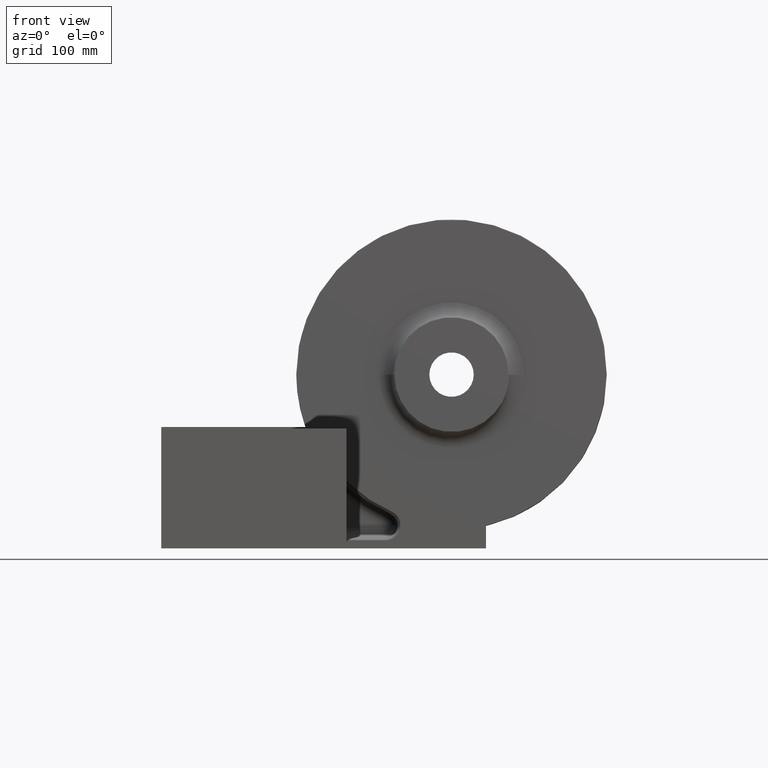
[diagram: clean part render]
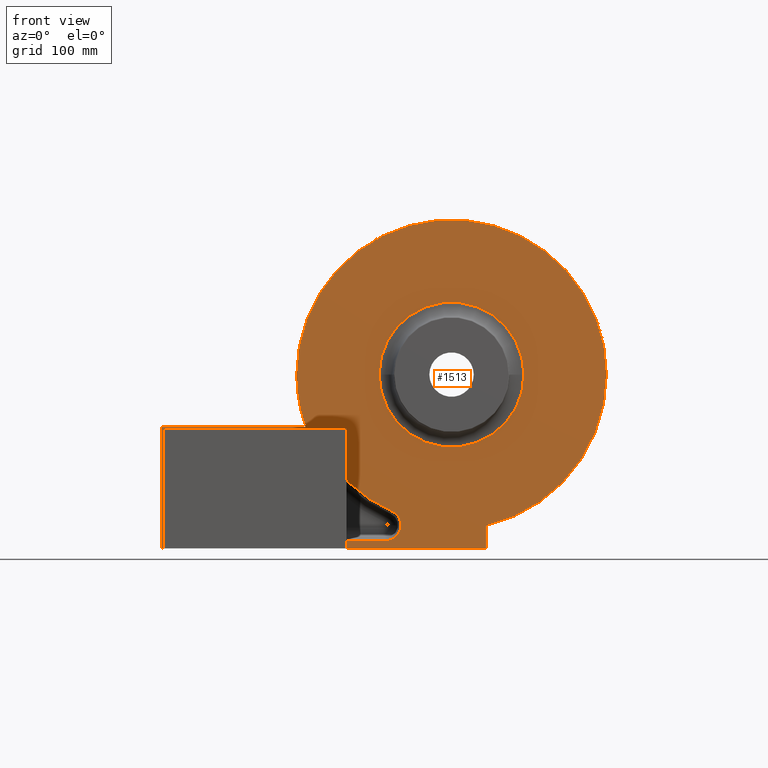
[diagram: same view with one face highlighted and labeled with its STEP entity id]
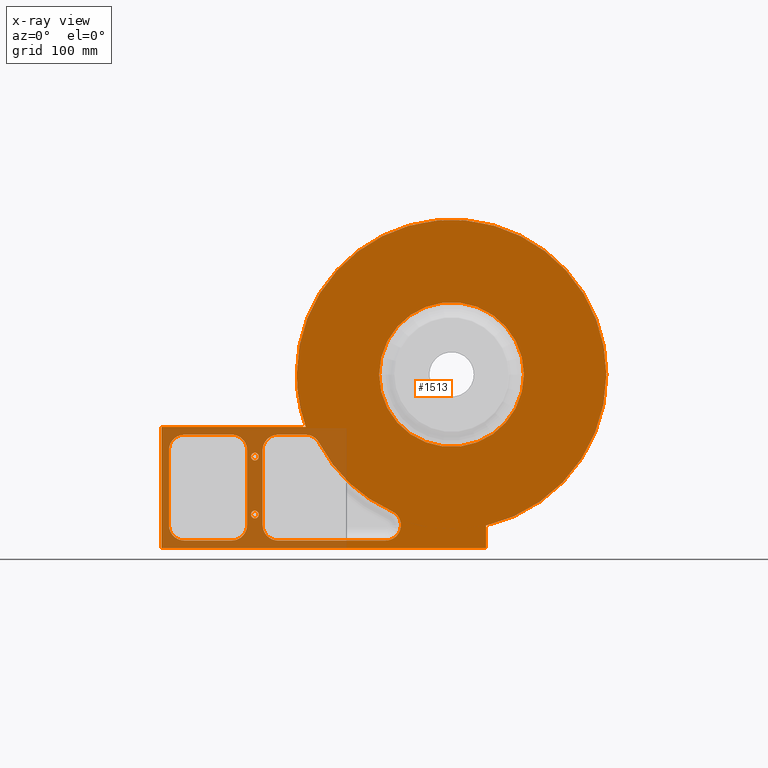
[diagram: x-ray of the same camera — body ghosted, the highlighted face saturated]
A machine part, front view. The second image highlights one B-rep face of the part: STEP entity #1513.
The next image is the same camera in x-ray: the body ghosted, the highlighted face saturated — about 9% of this face is hidden behind the body in this view.
In plain terms, the highlighted planar face has unit normal (-0, -1, 0).
Its self-contained STEP definition (entity closure, byte-faithful):
#8 = ORIENTED_EDGE ( 'NONE', *, *, #1732, .F. ) ;
#17 = EDGE_CURVE ( 'NONE', #4305, #844, #1798, .T. ) ;
#24 = CARTESIAN_POINT ( 'NONE',  ( 107.7357072589169320, 399.9999000000000251, -10.99392349670232427 ) ) ;
#56 = CARTESIAN_POINT ( 'NONE',  ( 95.00000000000005684, 399.9999000000000251, -28.99999999999997158 ) ) ;
#113 = VERTEX_POINT ( 'NONE', #1658 ) ;
#170 = CARTESIAN_POINT ( 'NONE',  ( 103.0516862581566642, 399.9999000000000251, -99.95379654223441435 ) ) ;
#181 = ORIENTED_EDGE ( 'NONE', *, *, #1547, .F. ) ;
#195 = EDGE_CURVE ( 'NONE', #3218, #1391, #3594, .T. ) ;
#197 = CARTESIAN_POINT ( 'NONE',  ( 22.00000000000007461, 399.9999000000000251, -6.309902495942099065 ) ) ;
#203 = EDGE_CURVE ( 'NONE', #3938, #1290, #1618, .T. ) ;
#213 = CARTESIAN_POINT ( 'NONE',  ( 79.22500547356895595, 399.9999000000000819, -114.3035800085973790 ) ) ;
#248 = ORIENTED_EDGE ( 'NONE', *, *, #2080, .F. ) ;
#263 = CARTESIAN_POINT ( 'NONE',  ( 80.32449696644725634, 399.9999000000001388, -6.309902495942099065 ) ) ;
#271 = LINE ( 'NONE', #1792, #2079 ) ;
#286 = EDGE_CURVE ( 'NONE', #715, #2244, #1958, .T. ) ;
#307 = AXIS2_PLACEMENT_3D ( 'NONE', #371, #4455, #3662 ) ;
#333 = CARTESIAN_POINT ( 'NONE',  ( 161.6348841464114230, 399.9999000000000251, -14.93015284774251761 ) ) ;
#368 = PLANE ( 'NONE',  #3910 ) ;
#371 = CARTESIAN_POINT ( 'NONE',  ( 298.7417837622145385, 399.9998999999999683, 55.99999999999999289 ) ) ;
#387 = EDGE_CURVE ( 'NONE', #1756, #4097, #2100, .T. ) ;
#406 = ORIENTED_EDGE ( 'NONE', *, *, #1072, .T. ) ;
#412 = CIRCLE ( 'NONE', #4493, 160.3160192545639120 ) ;
#422 = DIRECTION ( 'NONE',  ( -1.214623636765614367E-16, -1.000000000000000000, 0.0000000000000000000 ) ) ;
#446 = LINE ( 'NONE', #1851, #4320 ) ;
#457 = VECTOR ( 'NONE', #1303, 1000.000000000000000 ) ;
#470 = CIRCLE ( 'NONE', #784, 3.999999999999989786 ) ;
#482 = CARTESIAN_POINT ( 'NONE',  ( 103.0516862581567210, 399.9999000000000251, 56.00000000000004974 ) ) ;
#514 = CARTESIAN_POINT ( 'NONE',  ( 373.7417837622145385, 399.9998999999999683, 55.99999999999999289 ) ) ;
#542 = AXIS2_PLACEMENT_3D ( 'NONE', #3396, #2222, #1908 ) ;
#555 = CARTESIAN_POINT ( 'NONE',  ( 22.00000000000007461, 399.9999000000000251, -99.99999999999997158 ) ) ;
#569 = EDGE_CURVE ( 'NONE', #2107, #3257, #2661, .T. ) ;
#583 = FACE_BOUND ( 'NONE', #1921, .T. ) ;
#585 = CARTESIAN_POINT ( 'NONE',  ( 95.00000000000002842, 399.9999000000000251, -89.00000000000000000 ) ) ;
#598 = CARTESIAN_POINT ( 'NONE',  ( 114.7465298024211080, 399.9999000000000251, -6.309902495942115941 ) ) ;
#601 = DIRECTION ( 'NONE',  ( -1.214623636765614367E-16, -1.000000000000000000, -0.0000000000000000000 ) ) ;
#641 = CARTESIAN_POINT ( 'NONE',  ( 70.95379654223451382, 399.9999000000000251, -115.9483137418433358 ) ) ;
#659 = EDGE_LOOP ( 'NONE', ( #1892, #729, #3382, #2300, #248, #4632, #2931, #8, #4862 ) ) ;
#668 = DIRECTION ( 'NONE',  ( -1.000000000000000000, 1.242786967863980845E-16, 0.0000000000000000000 ) ) ;
#672 = VERTEX_POINT ( 'NONE', #1900 ) ;
#691 = CARTESIAN_POINT ( 'NONE',  ( 86.94831374184336426, 399.9999000000000251, -104.2534701975789631 ) ) ;
#704 = CIRCLE ( 'NONE', #3206, 15.94831374184333583 ) ;
#715 = VERTEX_POINT ( 'NONE', #2308 ) ;
#718 = CARTESIAN_POINT ( 'NONE',  ( 99.00000000000001421, 399.9999000000000251, -89.00000000000000000 ) ) ;
#727 = ORIENTED_EDGE ( 'NONE', *, *, #2587, .F. ) ;
#729 = ORIENTED_EDGE ( 'NONE', *, *, #203, .F. ) ;
#762 = CARTESIAN_POINT ( 'NONE',  ( 110.7749945264311862, 399.9999000000000251, -7.954636229188082552 ) ) ;
#784 = AXIS2_PLACEMENT_3D ( 'NONE', #56, #2610, #2245 ) ;
#785 = CARTESIAN_POINT ( 'NONE',  ( 86.94831374184342110, 399.9999000000000251, 55.99999999999999289 ) ) ;
#819 = CARTESIAN_POINT ( 'NONE',  ( 6.051686258156719234, 399.9999000000000251, -22.25821623778540115 ) ) ;
#820 = CARTESIAN_POINT ( 'NONE',  ( 86.94831374184339268, 399.9999000000000251, -22.30441969555102588 ) ) ;
#826 = EDGE_CURVE ( 'NONE', #3317, #1615, #4608, .T. ) ;
#830 = CARTESIAN_POINT ( 'NONE',  ( 230.3930718890489402, 399.9999000000000251, -115.9483137418433643 ) ) ;
#844 = VERTEX_POINT ( 'NONE', #3184 ) ;
#862 = CIRCLE ( 'NONE', #1730, 15.94831374184338380 ) ;
#878 = ORIENTED_EDGE ( 'NONE', *, *, #195, .T. ) ;
#888 = CARTESIAN_POINT ( 'NONE',  ( 22.00000000000007461, 399.9999000000000251, -6.309902495942099065 ) ) ;
#901 = EDGE_CURVE ( 'NONE', #1147, #2249, #3108, .T. ) ;
#941 = VERTEX_POINT ( 'NONE', #2988 ) ;
#953 = CARTESIAN_POINT ( 'NONE',  ( 71.00479745034216705, 399.9999000000000251, -115.9483137418433358 ) ) ;
#963 = DIRECTION ( 'NONE',  ( 1.000000000000000000, 0.0000000000000000000, 0.0000000000000000000 ) ) ;
#965 = CARTESIAN_POINT ( 'NONE',  ( 6.051686258156774301, 399.9999000000000251, -99.99999999999997158 ) ) ;
#972 = FACE_OUTER_BOUND ( 'NONE', #1627, .T. ) ;
#979 = DIRECTION ( 'NONE',  ( 1.000000000000000000, -1.214623636765614367E-16, -1.328815102230828392E-16 ) ) ;
#989 = CARTESIAN_POINT ( 'NONE',  ( 298.7417837622145385, 399.9999000000000251, 55.99999999999999289 ) ) ;
#993 = CARTESIAN_POINT ( 'NONE',  ( -1.999999999999946265, 399.9999000000000251, -124.0000000000000000 ) ) ;
#1029 = CIRCLE ( 'NONE', #1189, 15.94831374184338380 ) ;
#1064 = CARTESIAN_POINT ( 'NONE',  ( 298.7417837622145385, 399.9999000000000251, 55.99999999999999289 ) ) ;
#1072 = EDGE_CURVE ( 'NONE', #1391, #3218, #4144, .T. ) ;
#1093 = CARTESIAN_POINT ( 'NONE',  ( 147.4698497955959624, 399.9999000000000251, -22.25821623778551128 ) ) ;
#1147 = VERTEX_POINT ( 'NONE', #4612 ) ;
#1161 = CARTESIAN_POINT ( 'NONE',  ( 230.3930718890489402, 399.9999000000000251, -99.99999999999997158 ) ) ;
#1162 = CARTESIAN_POINT ( 'NONE',  ( 104.6964199914026921, 399.9999000000000251, -14.03321076421655889 ) ) ;
#1170 = ORIENTED_EDGE ( 'NONE', *, *, #3642, .F. ) ;
#1189 = AXIS2_PLACEMENT_3D ( 'NONE', #1161, #3014, #3353 ) ;
#1190 = VERTEX_POINT ( 'NONE', #2790 ) ;
#1192 = CARTESIAN_POINT ( 'NONE',  ( 119.0462034577655857, 399.9999000000000251, -115.9483137418433358 ) ) ;
#1198 = VECTOR ( 'NONE', #3101, 1000.000000000000000 ) ;
#1208 = CARTESIAN_POINT ( 'NONE',  ( 6.051686258156719234, 399.9999000000000251, -99.99999999999997158 ) ) ;
#1209 = CARTESIAN_POINT ( 'NONE',  ( 95.00000000000002842, 399.9999000000000251, -89.00000000000000000 ) ) ;
#1217 = CARTESIAN_POINT ( 'NONE',  ( 230.3930718890489402, 399.9999000000000251, -115.9483137418433643 ) ) ;
#1222 = EDGE_CURVE ( 'NONE', #4097, #3471, #3180, .T. ) ;
#1242 = LINE ( 'NONE', #482, #1323 ) ;
#1281 = EDGE_CURVE ( 'NONE', #3574, #3317, #1242, .T. ) ;
#1290 = VERTEX_POINT ( 'NONE', #4193 ) ;
#1303 = DIRECTION ( 'NONE',  ( 1.000000000000000000, -1.214623636765614367E-16, -1.139491522003710415E-19 ) ) ;
#1323 = VECTOR ( 'NONE', #2367, 1000.000000000000000 ) ;
#1326 = AXIS2_PLACEMENT_3D ( 'NONE', #585, #4416, #2859 ) ;
#1342 = CIRCLE ( 'NONE', #3135, 75.00000000000001421 ) ;
#1381 = CARTESIAN_POINT ( 'NONE',  ( 82.26429274108316747, 399.9999000000000251, -111.2642927410831390 ) ) ;
#1391 = VERTEX_POINT ( 'NONE', #3796 ) ;
#1402 = AXIS2_PLACEMENT_3D ( 'NONE', #3695, #3336, #2927 ) ;
#1416 = VECTOR ( 'NONE', #668, 1000.000000000000000 ) ;
#1417 = ORIENTED_EDGE ( 'NONE', *, *, #2693, .F. ) ;
#1428 = CARTESIAN_POINT ( 'NONE',  ( 333.7417837622145385, 399.9998999999999683, -124.0000000000000000 ) ) ;
#1436 = CARTESIAN_POINT ( 'NONE',  ( 459.0578030167784505, 399.9999000000000251, 55.99999999999999289 ) ) ;
#1513 = ADVANCED_FACE ( 'NONE', ( #2805, #3946, #583, #4340, #972, #2462 ), #368, .T. ) ;
#1546 = CARTESIAN_POINT ( 'NONE',  ( 103.0516862581566642, 399.9999000000001388, -109.3244969664471995 ) ) ;
#1547 = EDGE_CURVE ( 'NONE', #113, #3574, #3921, .T. ) ;
#1561 =( BOUNDED_CURVE ( )  B_SPLINE_CURVE ( 3, ( #4426, #598, #762, #2646 ),
 .UNSPECIFIED., .F., .F. ) 
 B_SPLINE_CURVE_WITH_KNOTS ( ( 4, 4 ),
 ( 5.498129760120305853, 6.283185307179586232 ),
 .UNSPECIFIED. ) 
 CURVE ( )  GEOMETRIC_REPRESENTATION_ITEM ( )  RATIONAL_B_SPLINE_CURVE ( ( 1.000000000000000000, 0.9492967171685287031, 0.9492967171685287031, 1.000000000000000000 ) ) 
 REPRESENTATION_ITEM ( '' )  );
#1615 = VERTEX_POINT ( 'NONE', #2305 ) ;
#1618 =( BOUNDED_CURVE ( )  B_SPLINE_CURVE ( 3, ( #3623, #2150, #263, #3227 ),
 .UNSPECIFIED., .F., .F. ) 
 B_SPLINE_CURVE_WITH_KNOTS ( ( 4, 4 ),
 ( 2.356537106530514514, 3.926648200649075271 ),
 .UNSPECIFIED. ) 
 CURVE ( )  GEOMETRIC_REPRESENTATION_ITEM ( )  RATIONAL_B_SPLINE_CURVE ( ( 1.000000000000000000, 0.8048993373437796084, 0.8048993373437796084, 1.000000000000000000 ) ) 
 REPRESENTATION_ITEM ( '' )  );
#1627 = EDGE_LOOP ( 'NONE', ( #4155, #3582, #4164, #4598, #2635, #1665, #4183, #3770 ) ) ;
#1642 = AXIS2_PLACEMENT_3D ( 'NONE', #2555, #2195, #2584 ) ;
#1658 = CARTESIAN_POINT ( 'NONE',  ( 107.7357072589169320, 399.9999000000000251, -10.99392349670232427 ) ) ;
#1665 = ORIENTED_EDGE ( 'NONE', *, *, #4149, .T. ) ;
#1680 = CIRCLE ( 'NONE', #4431, 160.3160192545639120 ) ;
#1686 = CARTESIAN_POINT ( 'NONE',  ( 70.95379654223451382, 399.9999000000000251, -115.9483137418433358 ) ) ;
#1709 = CARTESIAN_POINT ( 'NONE',  ( 82.26429274108316747, 399.9999000000000251, -111.2642927410831390 ) ) ;
#1730 = AXIS2_PLACEMENT_3D ( 'NONE', #1093, #4760, #2576 ) ;
#1732 = EDGE_CURVE ( 'NONE', #2689, #4854, #4378, .T. ) ;
#1755 = CARTESIAN_POINT ( 'NONE',  ( 85.30358000859743584, 399.9999000000000251, -108.2250054735688991 ) ) ;
#1756 = VERTEX_POINT ( 'NONE', #3237 ) ;
#1792 = CARTESIAN_POINT ( 'NONE',  ( 334.4835675244290201, 399.9998999999999683, 55.99999999999999289 ) ) ;
#1798 = CIRCLE ( 'NONE', #542, 3.999999999999989786 ) ;
#1839 = EDGE_CURVE ( 'NONE', #672, #113, #1561, .T. ) ;
#1851 = CARTESIAN_POINT ( 'NONE',  ( 118.9952025496579040, 399.9999000000000251, -6.309902495942099065 ) ) ;
#1882 = CIRCLE ( 'NONE', #1642, 15.94831374184336248 ) ;
#1883 = AXIS2_PLACEMENT_3D ( 'NONE', #989, #2772, #963 ) ;
#1892 = ORIENTED_EDGE ( 'NONE', *, *, #4139, .F. ) ;
#1900 = CARTESIAN_POINT ( 'NONE',  ( 119.0462034577656425, 399.9999000000000251, -6.309902495942099065 ) ) ;
#1908 = DIRECTION ( 'NONE',  ( -1.000000000000000000, 0.0000000000000000000, 0.0000000000000000000 ) ) ;
#1918 = DIRECTION ( 'NONE',  ( 1.000000000000000000, 0.0000000000000000000, 0.0000000000000000000 ) ) ;
#1921 = EDGE_LOOP ( 'NONE', ( #2975, #1170, #3755, #4285, #181, #3635, #1417, #727, #4688 ) ) ;
#1923 = CARTESIAN_POINT ( 'NONE',  ( 103.0516862581566642, 399.9999000000000251, -99.95379654223441435 ) ) ;
#1933 = EDGE_CURVE ( 'NONE', #2152, #3938, #4520, .T. ) ;
#1957 = VECTOR ( 'NONE', #2504, 1000.000000000000000 ) ;
#1958 = CIRCLE ( 'NONE', #1402, 154.3677055127205620 ) ;
#1969 = DIRECTION ( 'NONE',  ( 0.0000000000000000000, 0.0000000000000000000, 1.000000000000000000 ) ) ;
#2014 = CARTESIAN_POINT ( 'NONE',  ( 21.99999999999996447, 399.9999000000000251, -115.9483137418433358 ) ) ;
#2023 = EDGE_LOOP ( 'NONE', ( #3713, #2607 ) ) ;
#2079 = VECTOR ( 'NONE', #4795, 1000.000000000000000 ) ;
#2080 = EDGE_CURVE ( 'NONE', #4628, #1190, #4640, .T. ) ;
#2100 =( BOUNDED_CURVE ( )  B_SPLINE_CURVE ( 3, ( #4438, #3023, #4165, #4114 ),
 .UNSPECIFIED., .F., .F. ) 
 B_SPLINE_CURVE_WITH_KNOTS ( ( 4, 4 ),
 ( 5.497825219993115908, 7.068545394366056556 ),
 .UNSPECIFIED. ) 
 CURVE ( )  GEOMETRIC_REPRESENTATION_ITEM ( )  RATIONAL_B_SPLINE_CURVE ( ( 1.000000000000000000, 0.8047558030806296614, 0.8047558030806296614, 1.000000000000000000 ) ) 
 REPRESENTATION_ITEM ( '' )  );
#2107 = VERTEX_POINT ( 'NONE', #3969 ) ;
#2108 = VERTEX_POINT ( 'NONE', #3925 ) ;
#2127 = VECTOR ( 'NONE', #1969, 1000.000000000000000 ) ;
#2150 = CARTESIAN_POINT ( 'NONE',  ( 86.94831374184337847, 399.9999000000001388, -12.93371927133824251 ) ) ;
#2152 = VERTEX_POINT ( 'NONE', #2906 ) ;
#2163 = LINE ( 'NONE', #1428, #1416 ) ;
#2186 = DIRECTION ( 'NONE',  ( 1.000000000000000000, 0.0000000000000000000, 0.0000000000000000000 ) ) ;
#2195 = DIRECTION ( 'NONE',  ( -1.214623636765614367E-16, -1.000000000000000000, 0.0000000000000000000 ) ) ;
#2199 = EDGE_CURVE ( 'NONE', #3428, #2689, #1882, .T. ) ;
#2222 = DIRECTION ( 'NONE',  ( 1.214623636765614367E-16, 1.000000000000000000, -0.0000000000000000000 ) ) ;
#2244 = VERTEX_POINT ( 'NONE', #333 ) ;
#2245 = DIRECTION ( 'NONE',  ( -1.000000000000000000, 0.0000000000000000000, 0.0000000000000000000 ) ) ;
#2249 = VERTEX_POINT ( 'NONE', #1436 ) ;
#2256 = CARTESIAN_POINT ( 'NONE',  ( 298.7417837622145385, 399.9999000000000251, 55.99999999999999289 ) ) ;
#2287 = VECTOR ( 'NONE', #4701, 1000.000000000000000 ) ;
#2300 = ORIENTED_EDGE ( 'NONE', *, *, #4206, .F. ) ;
#2305 = CARTESIAN_POINT ( 'NONE',  ( 119.0462034577655857, 399.9999000000000251, -115.9483137418433358 ) ) ;
#2308 = CARTESIAN_POINT ( 'NONE',  ( 236.7932138461883937, 399.9999000000000251, -85.39223171950160918 ) ) ;
#2324 = ORIENTED_EDGE ( 'NONE', *, *, #2410, .T. ) ;
#2361 = DIRECTION ( 'NONE',  ( 1.000000000000000000, 0.0000000000000000000, 0.0000000000000000000 ) ) ;
#2367 = DIRECTION ( 'NONE',  ( -2.624844657249581056E-16, 3.188198363533278655E-32, -1.000000000000000000 ) ) ;
#2410 = EDGE_CURVE ( 'NONE', #844, #4305, #470, .T. ) ;
#2462 = FACE_BOUND ( 'NONE', #2023, .T. ) ;
#2472 = EDGE_CURVE ( 'NONE', #4854, #3264, #704, .T. ) ;
#2504 = DIRECTION ( 'NONE',  ( 7.140452475472831437E-16, -8.672962353910844267E-32, -1.000000000000000000 ) ) ;
#2541 = EDGE_LOOP ( 'NONE', ( #406, #878 ) ) ;
#2555 = CARTESIAN_POINT ( 'NONE',  ( 22.00000000000007461, 399.9999000000000251, -22.25821623778545444 ) ) ;
#2570 = CARTESIAN_POINT ( 'NONE',  ( 298.7417837622145385, 399.9998999999999683, 55.99999999999999289 ) ) ;
#2576 = DIRECTION ( 'NONE',  ( -1.000000000000000000, 0.0000000000000000000, 0.0000000000000000000 ) ) ;
#2584 = DIRECTION ( 'NONE',  ( -1.000000000000000000, 0.0000000000000000000, -1.065961601944742993E-14 ) ) ;
#2587 = EDGE_CURVE ( 'NONE', #2244, #941, #862, .T. ) ;
#2607 = ORIENTED_EDGE ( 'NONE', *, *, #569, .F. ) ;
#2610 = DIRECTION ( 'NONE',  ( 1.214623636765614367E-16, 1.000000000000000000, -0.0000000000000000000 ) ) ;
#2635 = ORIENTED_EDGE ( 'NONE', *, *, #4242, .T. ) ;
#2646 = CARTESIAN_POINT ( 'NONE',  ( 107.7357072589169320, 399.9999000000000251, -10.99392349670232427 ) ) ;
#2650 = CARTESIAN_POINT ( 'NONE',  ( 91.00000000000007105, 399.9999000000000251, -28.99999999999997158 ) ) ;
#2661 = CIRCLE ( 'NONE', #307, 75.00000000000001421 ) ;
#2689 = VERTEX_POINT ( 'NONE', #819 ) ;
#2693 = EDGE_CURVE ( 'NONE', #941, #672, #446, .T. ) ;
#2754 = CARTESIAN_POINT ( 'NONE',  ( -1.000038076935827469, 399.9999000000000251, 1.741783762214510478 ) ) ;
#2772 = DIRECTION ( 'NONE',  ( -1.214623636765614367E-16, -1.000000000000000000, -0.0000000000000000000 ) ) ;
#2790 = CARTESIAN_POINT ( 'NONE',  ( 82.26429274108316747, 399.9999000000000251, -111.2642927410831390 ) ) ;
#2805 = FACE_BOUND ( 'NONE', #3511, .T. ) ;
#2859 = DIRECTION ( 'NONE',  ( -1.000000000000000000, 0.0000000000000000000, 0.0000000000000000000 ) ) ;
#2874 = CARTESIAN_POINT ( 'NONE',  ( 86.94831374184342110, 399.9999000000000251, -99.95379654223441435 ) ) ;
#2906 = CARTESIAN_POINT ( 'NONE',  ( 86.94831374184342110, 399.9999000000000251, -99.95379654223441435 ) ) ;
#2927 = DIRECTION ( 'NONE',  ( -1.000000000000000000, 0.0000000000000000000, 0.0000000000000000000 ) ) ;
#2931 = ORIENTED_EDGE ( 'NONE', *, *, #2472, .F. ) ;
#2939 = DIRECTION ( 'NONE',  ( 0.0000000000000000000, 0.0000000000000000000, 1.000000000000000000 ) ) ;
#2975 = ORIENTED_EDGE ( 'NONE', *, *, #3079, .F. ) ;
#2981 = EDGE_CURVE ( 'NONE', #2108, #3030, #2163, .T. ) ;
#2988 = CARTESIAN_POINT ( 'NONE',  ( 147.4698497955960192, 399.9999000000000251, -6.309902495942099065 ) ) ;
#3014 = DIRECTION ( 'NONE',  ( -1.214623636765614367E-16, -1.000000000000000000, 0.0000000000000000000 ) ) ;
#3023 = CARTESIAN_POINT ( 'NONE',  ( -1.999999999999937605, 399.9999000000000251, 1.327595209928875475 ) ) ;
#3029 = CARTESIAN_POINT ( 'NONE',  ( 103.0516862581567210, 399.9999000000000251, -22.30441969555102588 ) ) ;
#3030 = VERTEX_POINT ( 'NONE', #993 ) ;
#3032 = DIRECTION ( 'NONE',  ( 1.214623636765614367E-16, 1.000000000000000000, -0.0000000000000000000 ) ) ;
#3079 = EDGE_CURVE ( 'NONE', #4025, #715, #1029, .T. ) ;
#3101 = DIRECTION ( 'NONE',  ( 1.000000000000000000, -1.214623636765614367E-16, -1.328815102230828392E-16 ) ) ;
#3105 = CARTESIAN_POINT ( 'NONE',  ( -2.000000000000001776, 399.9999000000000251, 55.99999999999999289 ) ) ;
#3108 = CIRCLE ( 'NONE', #1883, 160.3160192545639120 ) ;
#3135 = AXIS2_PLACEMENT_3D ( 'NONE', #2570, #4081, #1918 ) ;
#3180 = LINE ( 'NONE', #3931, #457 ) ;
#3184 = CARTESIAN_POINT ( 'NONE',  ( 99.00000000000004263, 399.9999000000000251, -28.99999999999997158 ) ) ;
#3206 = AXIS2_PLACEMENT_3D ( 'NONE', #555, #3513, #3891 ) ;
#3216 = EDGE_CURVE ( 'NONE', #3257, #2107, #1342, .T. ) ;
#3218 = VERTEX_POINT ( 'NONE', #718 ) ;
#3227 = CARTESIAN_POINT ( 'NONE',  ( 70.95379654223444277, 399.9999000000000251, -6.309902495942099065 ) ) ;
#3237 = CARTESIAN_POINT ( 'NONE',  ( -2.000000000000001776, 399.9999000000000251, 0.7418218391503361708 ) ) ;
#3239 = DIRECTION ( 'NONE',  ( -1.214623636765614367E-16, -1.000000000000000000, -0.0000000000000000000 ) ) ;
#3257 = VERTEX_POINT ( 'NONE', #514 ) ;
#3264 = VERTEX_POINT ( 'NONE', #2014 ) ;
#3306 = EDGE_CURVE ( 'NONE', #3030, #1756, #4295, .T. ) ;
#3317 = VERTEX_POINT ( 'NONE', #170 ) ;
#3336 = DIRECTION ( 'NONE',  ( 1.214623636765614367E-16, 1.000000000000000000, -0.0000000000000000000 ) ) ;
#3353 = DIRECTION ( 'NONE',  ( -1.000000000000000000, 0.0000000000000000000, 0.0000000000000000000 ) ) ;
#3360 = VECTOR ( 'NONE', #2939, 1000.000000000000000 ) ;
#3382 = ORIENTED_EDGE ( 'NONE', *, *, #1933, .F. ) ;
#3385 = CARTESIAN_POINT ( 'NONE',  ( 103.0516862581567210, 399.9999000000000251, -18.00474604020647362 ) ) ;
#3396 = CARTESIAN_POINT ( 'NONE',  ( 95.00000000000005684, 399.9999000000000251, -28.99999999999997158 ) ) ;
#3428 = VERTEX_POINT ( 'NONE', #197 ) ;
#3471 = VERTEX_POINT ( 'NONE', #3749 ) ;
#3473 = LINE ( 'NONE', #830, #1198 ) ;
#3511 = EDGE_LOOP ( 'NONE', ( #3943, #2324 ) ) ;
#3513 = DIRECTION ( 'NONE',  ( -1.214623636765614367E-16, -1.000000000000000000, 0.0000000000000000000 ) ) ;
#3539 = LINE ( 'NONE', #888, #2287 ) ;
#3544 =( BOUNDED_CURVE ( )  B_SPLINE_CURVE ( 3, ( #1381, #1755, #691, #2874 ),
 .UNSPECIFIED., .F., .F. ) 
 B_SPLINE_CURVE_WITH_KNOTS ( ( 4, 4 ),
 ( 0.0000000000000000000, 0.7850555470592803786 ),
 .UNSPECIFIED. ) 
 CURVE ( )  GEOMETRIC_REPRESENTATION_ITEM ( )  RATIONAL_B_SPLINE_CURVE ( ( 1.000000000000000000, 0.9492967171685287031, 0.9492967171685287031, 1.000000000000000000 ) ) 
 REPRESENTATION_ITEM ( '' )  );
#3574 = VERTEX_POINT ( 'NONE', #3029 ) ;
#3582 = ORIENTED_EDGE ( 'NONE', *, *, #2981, .F. ) ;
#3594 = CIRCLE ( 'NONE', #1326, 3.999999999999989786 ) ;
#3623 = CARTESIAN_POINT ( 'NONE',  ( 86.94831374184339268, 399.9999000000000251, -22.30441969555102588 ) ) ;
#3635 = ORIENTED_EDGE ( 'NONE', *, *, #1839, .F. ) ;
#3642 = EDGE_CURVE ( 'NONE', #1615, #4025, #3473, .T. ) ;
#3662 = DIRECTION ( 'NONE',  ( 1.000000000000000000, 0.0000000000000000000, 0.0000000000000000000 ) ) ;
#3695 = CARTESIAN_POINT ( 'NONE',  ( 298.7417837622145385, 399.9999000000000251, 55.99999999999999289 ) ) ;
#3713 = ORIENTED_EDGE ( 'NONE', *, *, #3216, .F. ) ;
#3739 = EDGE_CURVE ( 'NONE', #3264, #4628, #4345, .T. ) ;
#3740 = DIRECTION ( 'NONE',  ( -1.000000000000000000, 1.214623636765614367E-16, 1.110463690054878025E-16 ) ) ;
#3744 = VERTEX_POINT ( 'NONE', #4391 ) ;
#3749 = CARTESIAN_POINT ( 'NONE',  ( 147.8866479519829795, 399.9999000000000251, 1.741783762214510478 ) ) ;
#3755 = ORIENTED_EDGE ( 'NONE', *, *, #826, .F. ) ;
#3770 = ORIENTED_EDGE ( 'NONE', *, *, #387, .F. ) ;
#3776 = VECTOR ( 'NONE', #979, 1000.000000000000000 ) ;
#3796 = CARTESIAN_POINT ( 'NONE',  ( 91.00000000000004263, 399.9999000000000251, -89.00000000000000000 ) ) ;
#3824 = DIRECTION ( 'NONE',  ( -1.000000000000000000, 0.0000000000000000000, 0.0000000000000000000 ) ) ;
#3891 = DIRECTION ( 'NONE',  ( -1.000000000000000000, 0.0000000000000000000, 0.0000000000000000000 ) ) ;
#3895 = CARTESIAN_POINT ( 'NONE',  ( 75.25347019757906253, 399.9999000000000819, -115.9483137418433216 ) ) ;
#3904 = AXIS2_PLACEMENT_3D ( 'NONE', #1209, #3032, #3824 ) ;
#3910 = AXIS2_PLACEMENT_3D ( 'NONE', #2256, #422, #4480 ) ;
#3921 =( BOUNDED_CURVE ( )  B_SPLINE_CURVE ( 3, ( #24, #1162, #3385, #4572 ),
 .UNSPECIFIED., .F., .F. ) 
 B_SPLINE_CURVE_WITH_KNOTS ( ( 4, 4 ),
 ( 0.0000000000000000000, 0.7850555470592788243 ),
 .UNSPECIFIED. ) 
 CURVE ( )  GEOMETRIC_REPRESENTATION_ITEM ( )  RATIONAL_B_SPLINE_CURVE ( ( 1.000000000000000000, 0.9492967171685290362, 0.9492967171685290362, 1.000000000000000000 ) ) 
 REPRESENTATION_ITEM ( '' )  );
#3925 = CARTESIAN_POINT ( 'NONE',  ( 334.4835675244290769, 399.9998999999999683, -124.0000000000000000 ) ) ;
#3931 = CARTESIAN_POINT ( 'NONE',  ( 298.7417837622145385, 399.9999000000000251, 1.741783762214510478 ) ) ;
#3938 = VERTEX_POINT ( 'NONE', #820 ) ;
#3943 = ORIENTED_EDGE ( 'NONE', *, *, #17, .T. ) ;
#3946 = FACE_BOUND ( 'NONE', #2541, .T. ) ;
#3962 = CARTESIAN_POINT ( 'NONE',  ( 298.7417837622145385, 399.9999000000000251, 55.99999999999999289 ) ) ;
#3969 = CARTESIAN_POINT ( 'NONE',  ( 223.7417837622144816, 399.9998999999999683, 55.99999999999998579 ) ) ;
#4025 = VERTEX_POINT ( 'NONE', #1217 ) ;
#4081 = DIRECTION ( 'NONE',  ( -1.214623636765614367E-16, -1.000000000000000000, -0.0000000000000000000 ) ) ;
#4097 = VERTEX_POINT ( 'NONE', #2754 ) ;
#4114 = CARTESIAN_POINT ( 'NONE',  ( -1.000038076935827469, 399.9999000000000251, 1.741783762214510478 ) ) ;
#4139 = EDGE_CURVE ( 'NONE', #1290, #3428, #3539, .T. ) ;
#4144 = CIRCLE ( 'NONE', #3904, 3.999999999999989786 ) ;
#4149 = EDGE_CURVE ( 'NONE', #3744, #3471, #412, .T. ) ;
#4155 = ORIENTED_EDGE ( 'NONE', *, *, #3306, .F. ) ;
#4164 = ORIENTED_EDGE ( 'NONE', *, *, #4600, .F. ) ;
#4165 = CARTESIAN_POINT ( 'NONE',  ( -1.585811447714366995, 399.9999000000000251, 1.741783762214446085 ) ) ;
#4183 = ORIENTED_EDGE ( 'NONE', *, *, #1222, .F. ) ;
#4193 = CARTESIAN_POINT ( 'NONE',  ( 70.95379654223444277, 399.9999000000000251, -6.309902495942099065 ) ) ;
#4206 = EDGE_CURVE ( 'NONE', #1190, #2152, #3544, .T. ) ;
#4242 = EDGE_CURVE ( 'NONE', #2249, #3744, #1680, .T. ) ;
#4285 = ORIENTED_EDGE ( 'NONE', *, *, #1281, .F. ) ;
#4295 = LINE ( 'NONE', #3105, #2127 ) ;
#4305 = VERTEX_POINT ( 'NONE', #2650 ) ;
#4320 = VECTOR ( 'NONE', #3740, 1000.000000000000000 ) ;
#4340 = FACE_BOUND ( 'NONE', #659, .T. ) ;
#4345 = LINE ( 'NONE', #953, #3776 ) ;
#4378 = LINE ( 'NONE', #965, #1957 ) ;
#4391 = CARTESIAN_POINT ( 'NONE',  ( 138.4257645076506549, 399.9999000000000251, 55.99999999999997158 ) ) ;
#4416 = DIRECTION ( 'NONE',  ( 1.214623636765614367E-16, 1.000000000000000000, -0.0000000000000000000 ) ) ;
#4426 = CARTESIAN_POINT ( 'NONE',  ( 119.0462034577656425, 399.9999000000000251, -6.309902495942099065 ) ) ;
#4431 = AXIS2_PLACEMENT_3D ( 'NONE', #1064, #3239, #2186 ) ;
#4438 = CARTESIAN_POINT ( 'NONE',  ( -2.000000000000001776, 399.9999000000000251, 0.7418218391503361708 ) ) ;
#4455 = DIRECTION ( 'NONE',  ( -1.214623636765614367E-16, -1.000000000000000000, -0.0000000000000000000 ) ) ;
#4480 = DIRECTION ( 'NONE',  ( -1.000000000000000000, 1.214623636765614367E-16, 0.0000000000000000000 ) ) ;
#4493 = AXIS2_PLACEMENT_3D ( 'NONE', #3962, #601, #2361 ) ;
#4520 = LINE ( 'NONE', #785, #3360 ) ;
#4551 = CARTESIAN_POINT ( 'NONE',  ( 109.6755030335527863, 399.9999000000001388, -115.9483137418433643 ) ) ;
#4572 = CARTESIAN_POINT ( 'NONE',  ( 103.0516862581567210, 399.9999000000000251, -22.30441969555102588 ) ) ;
#4598 = ORIENTED_EDGE ( 'NONE', *, *, #901, .T. ) ;
#4600 = EDGE_CURVE ( 'NONE', #1147, #2108, #271, .T. ) ;
#4608 =( BOUNDED_CURVE ( )  B_SPLINE_CURVE ( 3, ( #1923, #1546, #4551, #1192 ),
 .UNSPECIFIED., .F., .F. ) 
 B_SPLINE_CURVE_WITH_KNOTS ( ( 4, 4 ),
 ( 2.356537106530513181, 3.926648200649073495 ),
 .UNSPECIFIED. ) 
 CURVE ( )  GEOMETRIC_REPRESENTATION_ITEM ( )  RATIONAL_B_SPLINE_CURVE ( ( 1.000000000000000000, 0.8048993373437796084, 0.8048993373437796084, 1.000000000000000000 ) ) 
 REPRESENTATION_ITEM ( '' )  );
#4612 = CARTESIAN_POINT ( 'NONE',  ( 334.4835675244290201, 399.9999000000000251, -100.2809998788234083 ) ) ;
#4628 = VERTEX_POINT ( 'NONE', #641 ) ;
#4632 = ORIENTED_EDGE ( 'NONE', *, *, #3739, .F. ) ;
#4640 =( BOUNDED_CURVE ( )  B_SPLINE_CURVE ( 3, ( #1686, #3895, #213, #1709 ),
 .UNSPECIFIED., .F., .F. ) 
 B_SPLINE_CURVE_WITH_KNOTS ( ( 4, 4 ),
 ( 5.498129760120311182, 6.283185307179586232 ),
 .UNSPECIFIED. ) 
 CURVE ( )  GEOMETRIC_REPRESENTATION_ITEM ( )  RATIONAL_B_SPLINE_CURVE ( ( 1.000000000000000000, 0.9492967171685294803, 0.9492967171685294803, 1.000000000000000000 ) ) 
 REPRESENTATION_ITEM ( '' )  );
#4688 = ORIENTED_EDGE ( 'NONE', *, *, #286, .F. ) ;
#4701 = DIRECTION ( 'NONE',  ( -1.000000000000000000, 1.214623636765614367E-16, 1.110463690054878025E-16 ) ) ;
#4760 = DIRECTION ( 'NONE',  ( -1.214623636765614367E-16, -1.000000000000000000, 0.0000000000000000000 ) ) ;
#4795 = DIRECTION ( 'NONE',  ( 0.0000000000000000000, 0.0000000000000000000, -1.000000000000000000 ) ) ;
#4854 = VERTEX_POINT ( 'NONE', #1208 ) ;
#4862 = ORIENTED_EDGE ( 'NONE', *, *, #2199, .F. ) ;